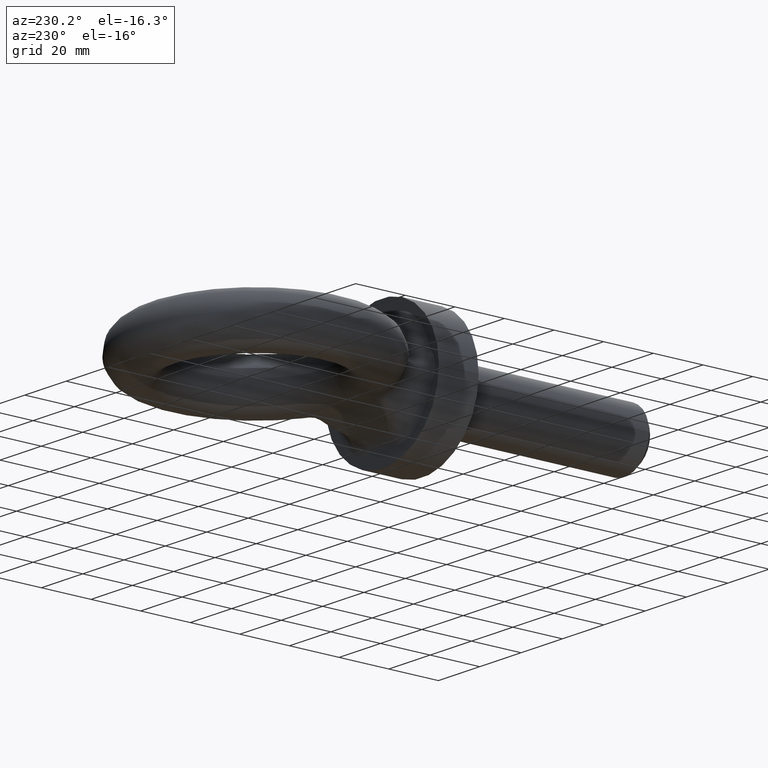
[diagram: clean part render]
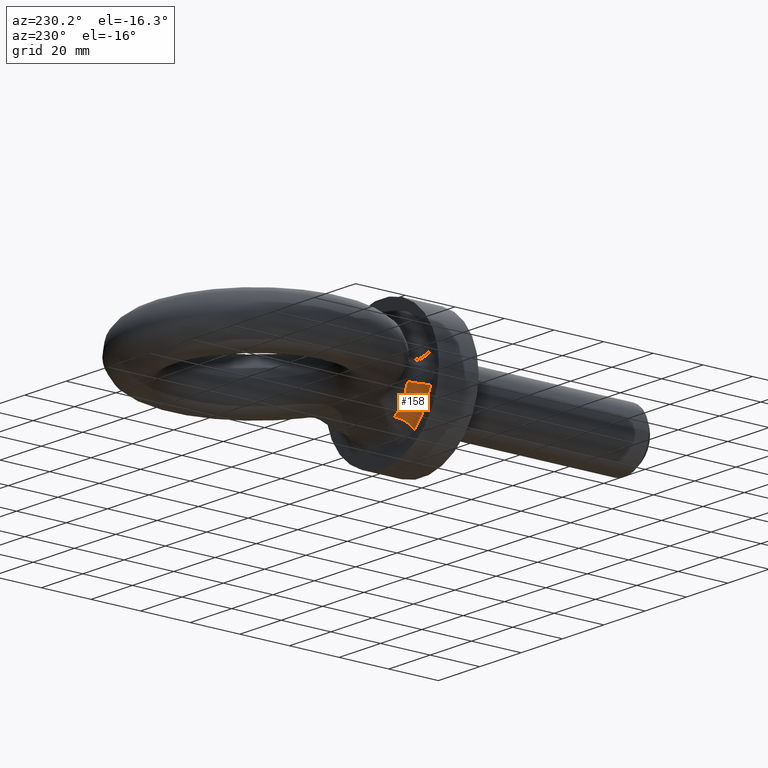
[diagram: same view with one face highlighted and labeled with its STEP entity id]
A machine part, auxiliary view. The second image highlights one B-rep face of the part: STEP entity #158.
In plain terms, the highlighted toroidal blend (fillet) surface has major radius 24.125 mm and minor (blend) radius 5.125 mm.
Its self-contained STEP definition (entity closure, byte-faithful):
#79=TOROIDAL_SURFACE('',#714,24.125,5.125);
#158=ADVANCED_FACE('',(#217),#79,.F.);
#217=FACE_OUTER_BOUND('',#263,.T.);
#263=EDGE_LOOP('',(#466,#467,#468,#469));
#275=CIRCLE('',#660,19.);
#281=CIRCLE('',#677,24.125);
#305=CIRCLE('',#710,5.125);
#307=CIRCLE('',#713,5.125);
#466=ORIENTED_EDGE('',*,*,#609,.T.);
#467=ORIENTED_EDGE('',*,*,#568,.F.);
#468=ORIENTED_EDGE('',*,*,#611,.F.);
#469=ORIENTED_EDGE('',*,*,#545,.F.);
#487=VERTEX_POINT('',#913);
#494=VERTEX_POINT('',#952);
#509=VERTEX_POINT('',#1150);
#510=VERTEX_POINT('',#1152);
#545=EDGE_CURVE('',#494,#487,#275,.T.);
#568=EDGE_CURVE('',#509,#510,#281,.T.);
#609=EDGE_CURVE('',#494,#510,#305,.T.);
#611=EDGE_CURVE('',#487,#509,#307,.T.);
#660=AXIS2_PLACEMENT_3D('',#953,#748,#749);
#677=AXIS2_PLACEMENT_3D('',#1151,#784,#785);
#710=AXIS2_PLACEMENT_3D('',#1512,#852,#853);
#713=AXIS2_PLACEMENT_3D('',#1533,#858,#859);
#714=AXIS2_PLACEMENT_3D('',#1534,#860,#861);
#748=DIRECTION('',(-2.41421590200679E-18,1.,0.));
#749=DIRECTION('',(1.,0.,0.));
#784=DIRECTION('',(2.41421590200679E-18,-1.,0.));
#785=DIRECTION('',(1.,0.,0.));
#852=DIRECTION('',(0.761419236186274,0.,-0.648259783393596));
#853=DIRECTION('',(-0.648259783393596,0.,-0.761419236186274));
#858=DIRECTION('',(0.232469705416921,0.,-0.972603637697993));
#859=DIRECTION('',(-0.972603637697994,0.,-0.232469705416922));
#860=DIRECTION('',(2.41421590200679E-18,-1.,0.));
#861=DIRECTION('',(1.,0.,0.));
#913=CARTESIAN_POINT('',(-18.4794691162619,21.125,-4.41692440292151));
#952=CARTESIAN_POINT('',(-12.3169358844783,21.125,-14.4669654875392));
#953=CARTESIAN_POINT('',(2.08226121548085E-17,21.125,0.));
#1150=CARTESIAN_POINT('',(-23.4640627594641,16.,-5.60833164318321));
#1151=CARTESIAN_POINT('',(3.31954686525933E-17,16.,0.));
#1152=CARTESIAN_POINT('',(-15.6392672743705,16.,-18.3692390729939));
#1512=CARTESIAN_POINT('',(-15.6392672743705,21.125,-18.3692390729939));
#1533=CARTESIAN_POINT('',(-23.4640627594641,21.125,-5.60833164318323));
#1534=CARTESIAN_POINT('',(2.08226121548085E-17,21.125,0.));